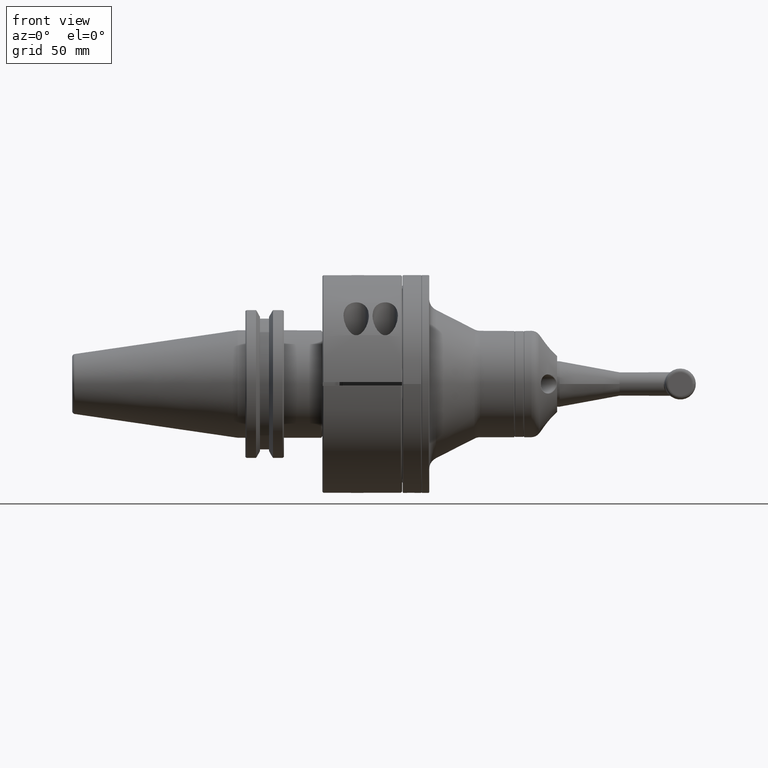
[diagram: clean part render]
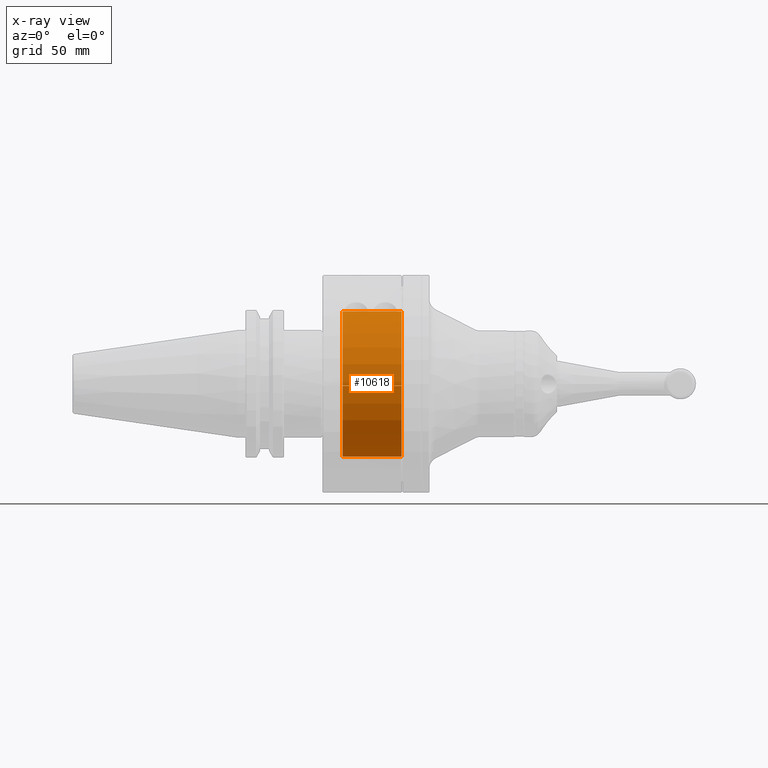
[diagram: x-ray — body ghosted, one internal face saturated and labeled with its STEP entity id]
A machine part, front view, then the same camera in x-ray: the body is ghosted and one INTERNAL B-rep face — a face not visible from any outside direction — is saturated and labeled: STEP entity #10618.
In plain terms, the highlighted cylindrical surface (partial cylindrical patch) has radius 30 mm, axis along (1, 0, -0).
Its self-contained STEP definition (entity closure, byte-faithful):
#681=CIRCLE('',#11523,30.);
#682=CIRCLE('',#11525,30.);
#1132=CYLINDRICAL_SURFACE('',#11524,30.);
#1333=FACE_OUTER_BOUND('',#1984,.T.);
#1984=EDGE_LOOP('',(#7560,#7561,#7562,#7563));
#2827=LINE('',#16631,#3664);
#2845=LINE('',#16719,#3682);
#3664=VECTOR('',#13040,24.40007090039);
#3682=VECTOR('',#13098,24.40007090038);
#4652=VERTEX_POINT('',#16626);
#4653=VERTEX_POINT('',#16630);
#4681=VERTEX_POINT('',#16714);
#4682=VERTEX_POINT('',#16718);
#5739=EDGE_CURVE('',#4652,#4653,#2827,.T.);
#5777=EDGE_CURVE('',#4681,#4682,#2845,.T.);
#5856=EDGE_CURVE('',#4652,#4682,#681,.T.);
#5857=EDGE_CURVE('',#4681,#4653,#682,.T.);
#7560=ORIENTED_EDGE('',*,*,#5857,.T.);
#7561=ORIENTED_EDGE('',*,*,#5739,.F.);
#7562=ORIENTED_EDGE('',*,*,#5856,.T.);
#7563=ORIENTED_EDGE('',*,*,#5777,.F.);
#10618=ADVANCED_FACE('',(#1333),#1132,.F.);
#11523=AXIS2_PLACEMENT_3D('',#16910,#13231,#13232);
#11524=AXIS2_PLACEMENT_3D('',#16911,#13233,#13234);
#11525=AXIS2_PLACEMENT_3D('',#16912,#13235,#13236);
#13040=DIRECTION('',(-1.150046126475E-9,-1.,2.872229620601E-11));
#13098=DIRECTION('',(-1.150046363079E-9,1.,-2.871938415409E-11));
#13231=DIRECTION('center_axis',(0.,1.,0.));
#13232=DIRECTION('ref_axis',(-1.,0.,-1.169030863543E-14));
#13233=DIRECTION('center_axis',(0.,-1.,0.));
#13234=DIRECTION('ref_axis',(2.48083823922827E-15,0.,-1.));
#13235=DIRECTION('center_axis',(0.,-1.,0.));
#13236=DIRECTION('ref_axis',(-0.0250000000001702,0.,0.999687451156606));
#16626=CARTESIAN_POINT('',(0.749999973367231,24.6000550638917,29.9906223718904));
#16630=CARTESIAN_POINT('',(0.749999955640721,0.199974459245364,29.9906222919737));
#16631=CARTESIAN_POINT('',(0.7499999083308,24.60004981912,29.99062211981));
#16714=CARTESIAN_POINT('',(-0.749999955640783,0.199974459246579,29.9906222919732));
#16718=CARTESIAN_POINT('',(-0.749999973367291,24.6000550638868,29.9906223718897));
#16719=CARTESIAN_POINT('',(-0.7499998802697,0.1999789187364,29.99062212051));
#16910=CARTESIAN_POINT('Origin',(1.247002511259E-12,24.60006018813,3.677058757559E-13));
#16911=CARTESIAN_POINT('Origin',(0.,34.65,0.));
#16912=CARTESIAN_POINT('Origin',(-6.394883621841E-14,0.1999710727041,-4.973799050321E-13));